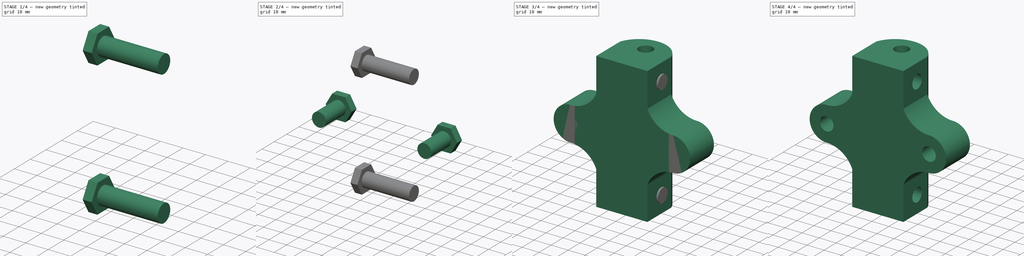
[diagram: build sequence overview — one tinted view per stage of 4, left to right]
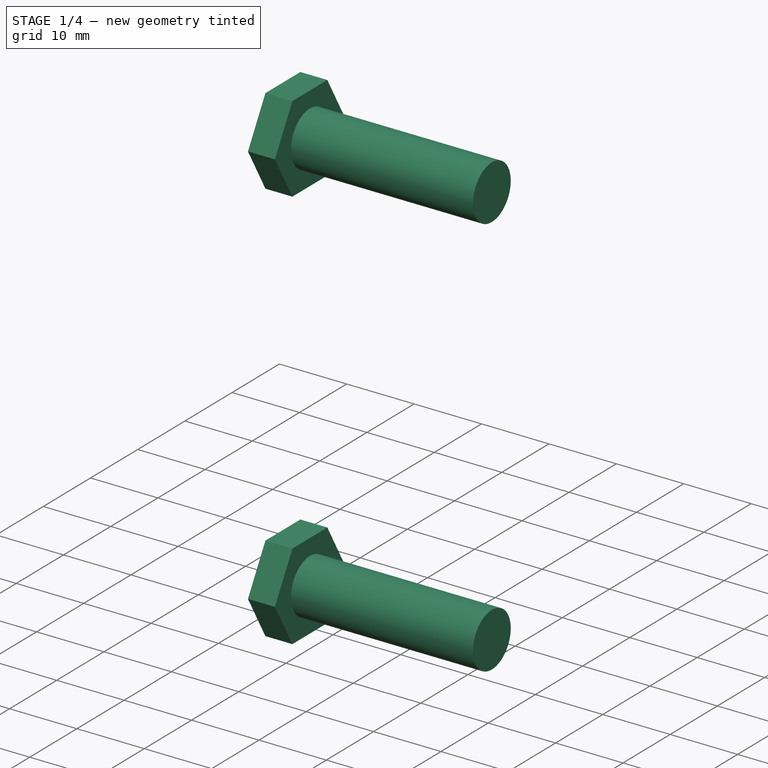
[diagram: stage 1 of 4 — iso view after this stage's code; geometry added in this stage tinted green]
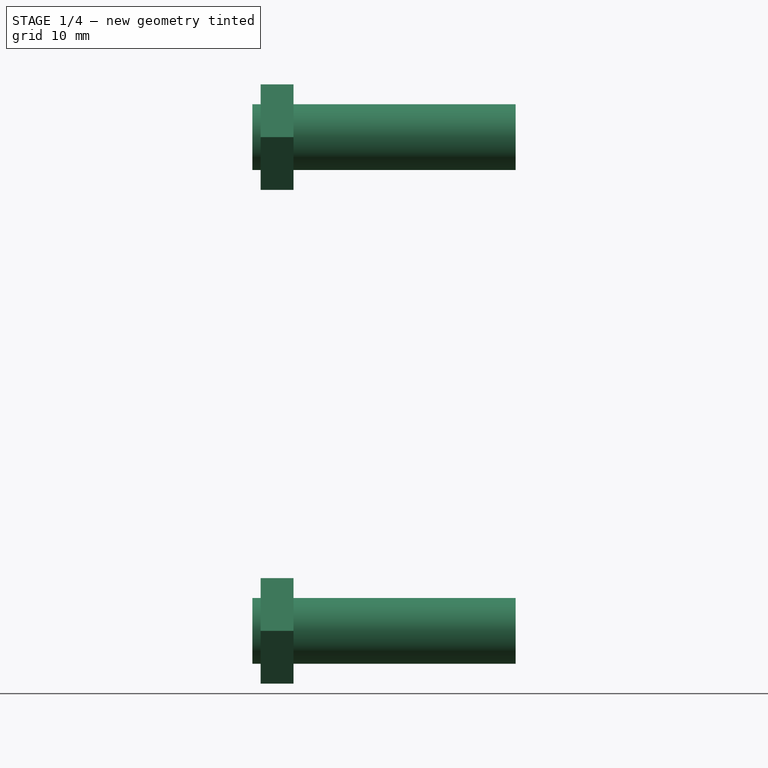
[diagram: stage 1 of 4 — front view after this stage's code; geometry added in this stage tinted green]
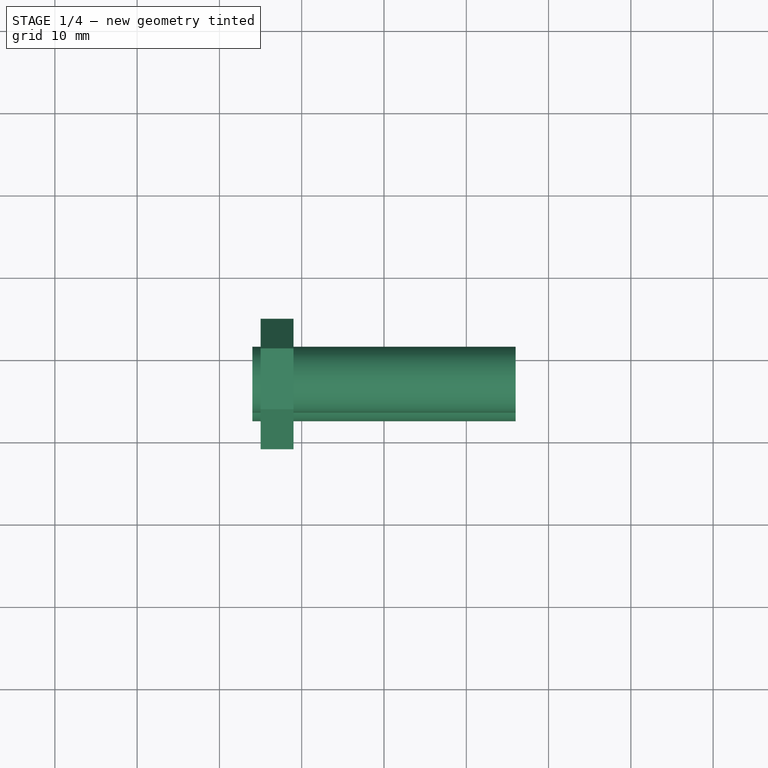
[diagram: stage 1 of 4 — top view after this stage's code; geometry added in this stage tinted green]
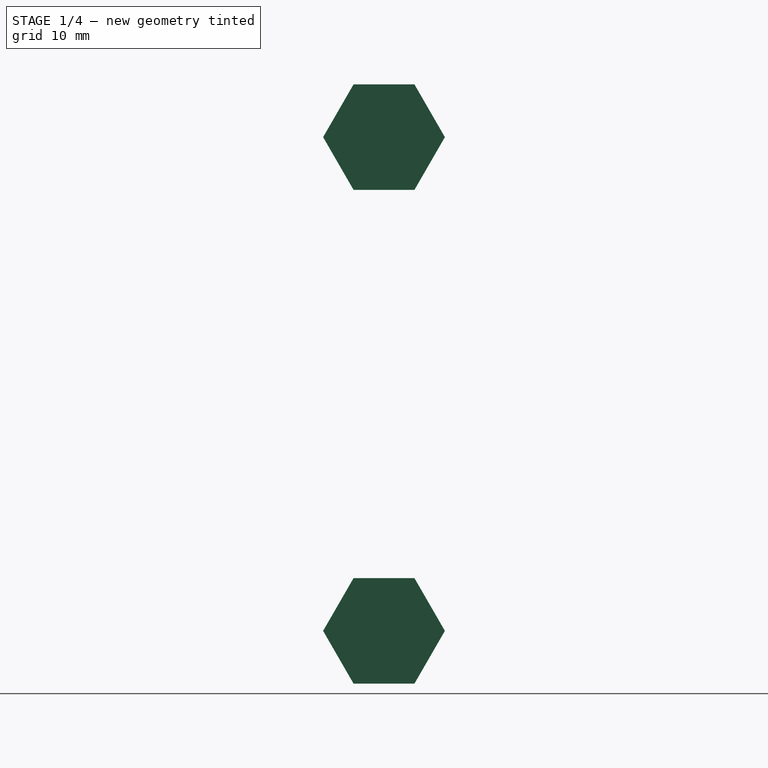
[diagram: stage 1 of 4 — right view after this stage's code; geometry added in this stage tinted green]
FCSTD DOCUMENT  (FreeCAD 0.16R6707 (Git))
Label: Corner_B
License: All rights reserved
LicenseURL: http://en.wikipedia.org/wiki/All_rights_reserved
objects: Sketcher::SketchObject×6, PartDesign::Pad×6, Part::MultiFuse×2, Part::Cut×1
note: 21 computed .brp shape members not serialized (recipe doc carries the construction recipe); baked Part::Feature solids carry a one-line shape summary decoded from their .brp

FEATURE [PartDesign::Pad] Pad004  label="RodHole02"
  Length = 32
  Length2 = 100
  Placement = pos=(16,0,0) rot=(0.57735,0.57735,0.57735;2.0944rad)
  Reversed = true
  Sketch = -> Sketch001
  Type = 0
FEATURE [PartDesign::Pad] Pad006  label="SideNutFlush02"
  Length = 4
  Length2 = 100
  Placement = pos=(-11,0,0) rot=(0.57735,0.57735,0.57735;2.0944rad)
  Reversed = true
  Sketch = -> Sketch002
  Type = 0
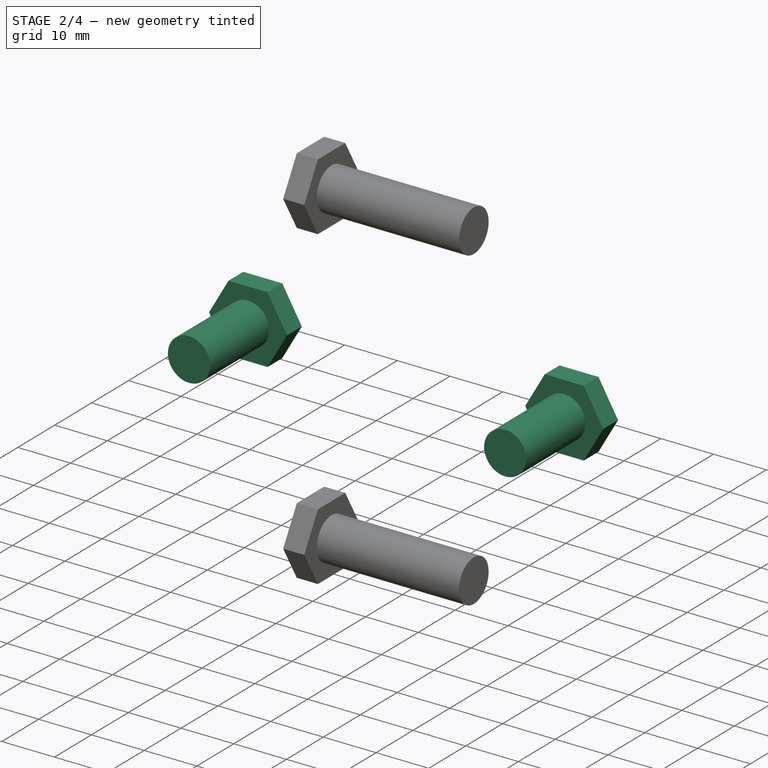
[diagram: stage 2 of 4 — iso view after this stage's code; geometry added in this stage tinted green]
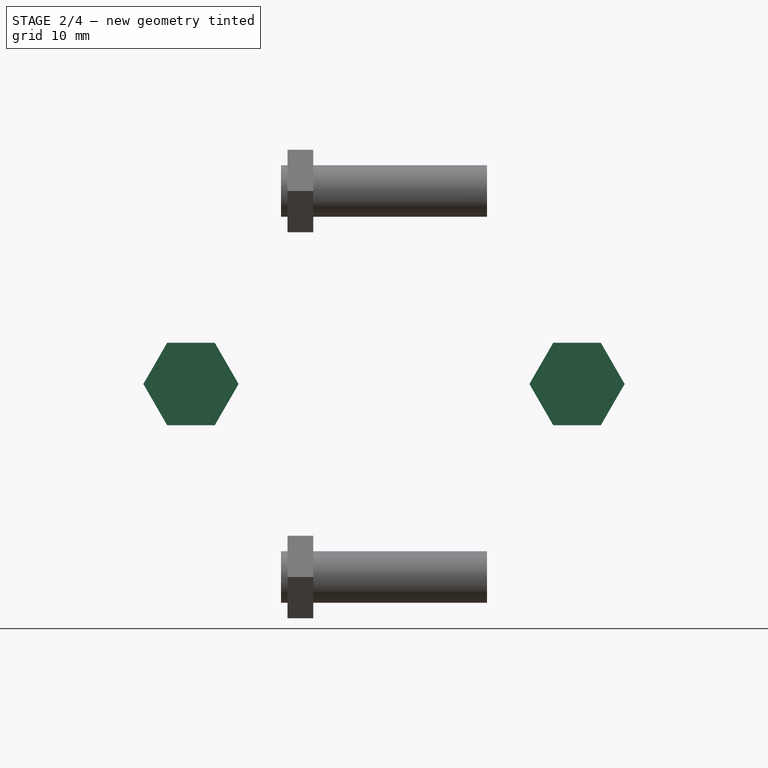
[diagram: stage 2 of 4 — front view after this stage's code; geometry added in this stage tinted green]
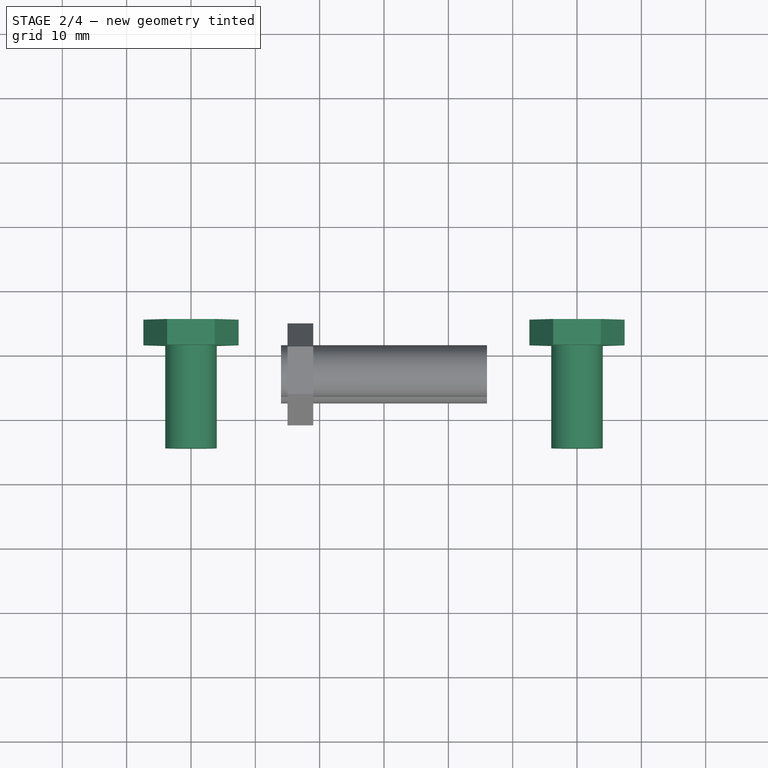
[diagram: stage 2 of 4 — top view after this stage's code; geometry added in this stage tinted green]
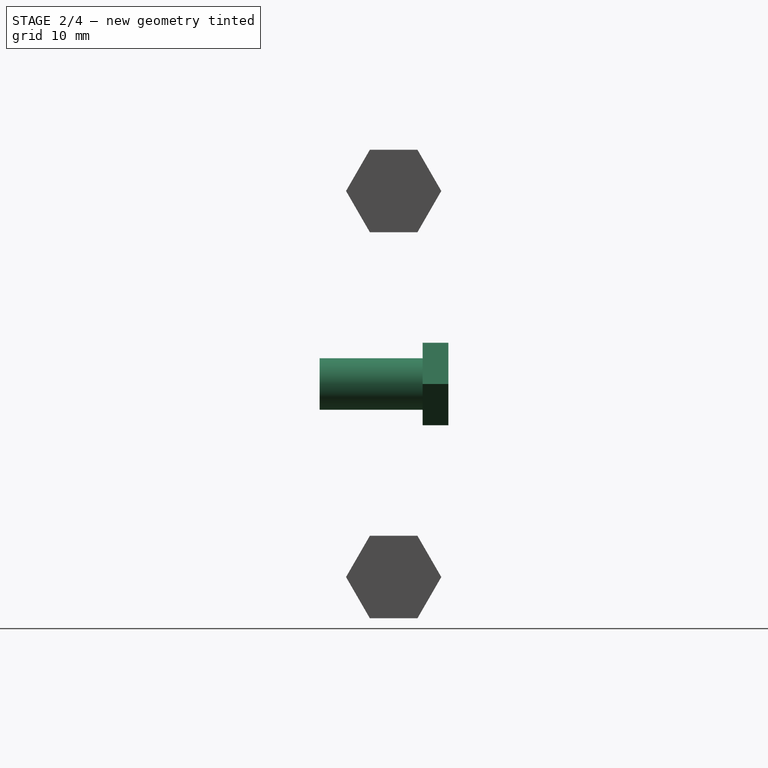
[diagram: stage 2 of 4 — right view after this stage's code; geometry added in this stage tinted green]
FEATURE [Sketcher::SketchObject] Sketch
  sketch-geometry (5):
    g0: LineSegment StartX=-15 StartY=5 StartZ=0 EndX=-15 EndY=-15 EndZ=0
    g1: LineSegment StartX=-15 StartY=-15 StartZ=0 EndX=15 EndY=-15 EndZ=0
    g2: LineSegment StartX=15 StartY=-15 StartZ=0 EndX=15 EndY=5 EndZ=0
    g3: Circle CenterX=0 CenterY=5 CenterZ=0 NormalX=0 NormalY=0 NormalZ=1 Radius=4.1
    g4: ArcOfCircle CenterX=0 CenterY=-0.567764 CenterZ=0 NormalX=0 NormalY=0 NormalZ=1 Radius=16 StartAngle=0.355421 EndAngle=2.78617
  constraints (17):
    c: Vertical(g0)
    c: Coincident(g0,g1)
    c: Horizontal(g1)
    c: Symmetric(g1,g0,g-2)
    c: DistanceX(g0,g1) = 30
    c: DistanceY(g1,g-1) = 15
    c: Vertical(g2)
    c: Coincident(g2,g1)
    c: Radius(g3) = 4.1
    c: PointOnObject(g3,g-2)
    c: DistanceY(g-1,g3) = 5
    c: PointOnObject(g4,g-2)
    c: Coincident(g4,g0)
    c: Coincident(g4,g2)
    c: Symmetric(g2,g0,g-2)
    c: DistanceY(g1,g2) = 20
    c: Radius(g4) = 16
FEATURE [Sketcher::SketchObject] Sketch001
  Placement = pos=(16,0,0) rot=(0.57735,0.57735,0.57735;2.0944rad)
  sketch-geometry (2):
    g0: Circle CenterX=-3.5 CenterY=70 CenterZ=0 NormalX=0 NormalY=0 NormalZ=1 Radius=4
    g1: Circle CenterX=-3.5 CenterY=10 CenterZ=0 NormalX=0 NormalY=0 NormalZ=1 Radius=4
  constraints (6):
    c: Radius(g1) = 4
    c: Equal(g1,g0)
    c: DistanceX(g0,g1) = 0
    c: DistanceY(g1,g0) = 60
    c: DistanceX(g1,g-1) = 3.5
    c: DistanceY(g-1,g1) = 10
FEATURE [Sketcher::SketchObject] Sketch002
  Placement = pos=(-11,0,0) rot=(0.57735,0.57735,0.57735;2.0944rad)
  sketch-geometry (14):
    g0: LineSegment StartX=3.9 StartY=70 StartZ=0 EndX=0.2 EndY=76.4086 EndZ=0
    g1: LineSegment StartX=0.2 StartY=76.4086 StartZ=0 EndX=-7.2 EndY=76.4086 EndZ=0
    g2: LineSegment StartX=-7.2 StartY=76.4086 StartZ=0 EndX=-10.9 EndY=70 EndZ=0
    g3: LineSegment StartX=-10.9 StartY=70 StartZ=0 EndX=-7.2 EndY=63.5914 EndZ=0
    g4: LineSegment StartX=-7.2 StartY=63.5914 StartZ=0 EndX=0.2 EndY=63.5914 EndZ=0
    g5: LineSegment StartX=0.2 StartY=63.5914 StartZ=0 EndX=3.9 EndY=70 EndZ=0
    g6: Circle [constr] CenterX=-3.5 CenterY=70 CenterZ=0 NormalX=0 NormalY=0 NormalZ=1 Radius=7.4
    g7: LineSegment StartX=0.2 StartY=3.59141 StartZ=0 EndX=3.9 EndY=10 EndZ=0
    g8: LineSegment StartX=3.9 StartY=10 StartZ=0 EndX=0.2 EndY=16.4086 EndZ=0
    g9: LineSegment StartX=0.2 StartY=16.4086 StartZ=0 EndX=-7.2 EndY=16.4086 EndZ=0
    g10: LineSegment StartX=-7.2 StartY=16.4086 StartZ=0 EndX=-10.9 EndY=10 EndZ=0
    g11: LineSegment StartX=-10.9 StartY=10 StartZ=0 EndX=-7.2 EndY=3.59141 EndZ=0
    g12: LineSegment StartX=-7.2 StartY=3.59141 StartZ=0 EndX=0.2 EndY=3.59141 EndZ=0
    g13: Circle [constr] CenterX=-3.5 CenterY=10 CenterZ=0 NormalX=0 NormalY=0 NormalZ=1 Radius=7.4
  constraints (34):
    c: Coincident(g0,g1)
    c: Coincident(g1,g2)
    c: Coincident(g2,g3)
    c: Coincident(g3,g4)
    c: Coincident(g4,g5)
    c: Coincident(g5,g0)
    c: Equal(g0, g1-g5) x5
    c: PointOnObject(g0,g6)
    c: PointOnObject(g1,g6)
    c: PointOnObject(g2,g6)
    c: PointOnObject(g3,g6)
    c: PointOnObject(g4,g6)
    c: PointOnObject(g5,g6)
    c: Coincident(g7,g8)
    c: Coincident(g8,g9)
    c: Coincident(g9,g10)
    c: Coincident(g10,g11)
    c: Coincident(g11,g12)
    c: Coincident(g12,g7)
    c: Equal(g7, g8-g12) x5
    c: PointOnObject(g7,g13)
    c: PointOnObject(g8,g13)
    c: PointOnObject(g9,g13)
    c: PointOnObject(g10,g13)
    c: PointOnObject(g11,g13)
    c: PointOnObject(g12,g13)
    c: Parallel(g9,g4)
    c: Radius(g6) = 7.4
    c: Equal(g6,g13)
    c: DistanceX(g13,g6) = 0
    c: DistanceY(g6,g13) = -60
    c: DistanceX(g13,g-1) = 3.5
    c: Perpendicular(g-2,g9)
    c: DistanceY(g-1,g13) = 10
FEATURE [Sketcher::SketchObject] Sketch007
  Placement = pos=(0,-15,0) rot=(1,0,0;1.5708rad)
  sketch-geometry (2):
    g0: Circle CenterX=30 CenterY=40 CenterZ=0 NormalX=0 NormalY=0 NormalZ=1 Radius=4
    g1: Circle CenterX=-30 CenterY=40 CenterZ=0 NormalX=0 NormalY=0 NormalZ=1 Radius=4
  constraints (6):
    c: Radius(g0) = 4
    c: DistanceY(g-1,g0) = 40
    c: Equal(g0,g1) = 4
    c: DistanceY(g1,g0) = 0
    c: DistanceX(g1,g0) = 60
    c: Symmetric(g0,g1,g-2)
FEATURE [Sketcher::SketchObject] Sketch008
  Placement = pos=(0,1,0) rot=(1,0,0;1.5708rad)
  sketch-geometry (14):
    g0: LineSegment StartX=33.7 StartY=33.5914 StartZ=0 EndX=37.4 EndY=40 EndZ=0
    g1: LineSegment StartX=37.4 StartY=40 StartZ=0 EndX=33.7 EndY=46.4086 EndZ=0
    g2: LineSegment StartX=33.7 StartY=46.4086 StartZ=0 EndX=26.3 EndY=46.4086 EndZ=0
    g3: LineSegment StartX=26.3 StartY=46.4086 StartZ=0 EndX=22.6 EndY=40 EndZ=0
    g4: LineSegment StartX=22.6 StartY=40 StartZ=0 EndX=26.3 EndY=33.5914 EndZ=0
    g5: LineSegment StartX=26.3 StartY=33.5914 StartZ=0 EndX=33.7 EndY=33.5914 EndZ=0
    g6: Circle [constr] CenterX=30 CenterY=40 CenterZ=0 NormalX=0 NormalY=0 NormalZ=1 Radius=7.4
    g7: LineSegment StartX=-26.3 StartY=33.5914 StartZ=0 EndX=-22.6 EndY=40 EndZ=0
    g8: LineSegment StartX=-22.6 StartY=40 StartZ=0 EndX=-26.3 EndY=46.4086 EndZ=0
    g9: LineSegment StartX=-26.3 StartY=46.4086 StartZ=0 EndX=-33.7 EndY=46.4086 EndZ=0
    g10: LineSegment StartX=-33.7 StartY=46.4086 StartZ=0 EndX=-37.4 EndY=40 EndZ=0
    g11: LineSegment StartX=-37.4 StartY=40 StartZ=0 EndX=-33.7 EndY=33.5914 EndZ=0
    g12: LineSegment StartX=-33.7 StartY=33.5914 StartZ=0 EndX=-26.3 EndY=33.5914 EndZ=0
    g13: Circle [constr] CenterX=-30 CenterY=40 CenterZ=0 NormalX=0 NormalY=0 NormalZ=1 Radius=7.4
  constraints (34):
    c: Coincident(g0,g1)
    c: Coincident(g1,g2)
    c: Coincident(g2,g3)
    c: Coincident(g3,g4)
    c: Coincident(g4,g5)
    c: Coincident(g5,g0)
    c: Equal(g0, g1-g5) x5
    c: PointOnObject(g0,g6)
    c: PointOnObject(g1,g6)
    c: PointOnObject(g2,g6)
    c: PointOnObject(g3,g6)
    c: PointOnObject(g4,g6)
    c: PointOnObject(g5,g6)
    c: Radius(g6) = 7.4
    c: Perpendicular(g-2,g2)
    c: DistanceY(g-1,g6) = 40
    c: Coincident(g7,g8)
    c: Coincident(g8,g9)
    c: Coincident(g9,g10)
    c: Coincident(g10,g11)
    c: Coincident(g11,g12)
    c: Coincident(g12,g7)
    c: Equal(g7, g8-g12) x5
    c: PointOnObject(g7,g13)
    c: PointOnObject(g8,g13)
    c: PointOnObject(g9,g13)
    c: PointOnObject(g10,g13)
    c: PointOnObject(g11,g13)
    c: PointOnObject(g12,g13)
    c: Equal(g6,g13) = 7.4
    c: DistanceY(g13,g6) = 0
    c: DistanceX(g13,g6) = 60
    c: Parallel(g2,g9)
    c: Symmetric(g13,g6,g-2)
FEATURE [PartDesign::Pad] Pad001  label="SideNutFlush01"
  Length = 4
  Length2 = 100
  Placement = pos=(0,1,0) rot=(1,0,0;1.5708rad)
  Reversed = true
  Sketch = -> Sketch008
  Type = 0
FEATURE [PartDesign::Pad] Pad003  label="RodHole01"
  Length = 20
  Length2 = 100
  Placement = pos=(0,-15,0) rot=(1,0,0;1.5708rad)
  Reversed = true
  Sketch = -> Sketch007
  Type = 0
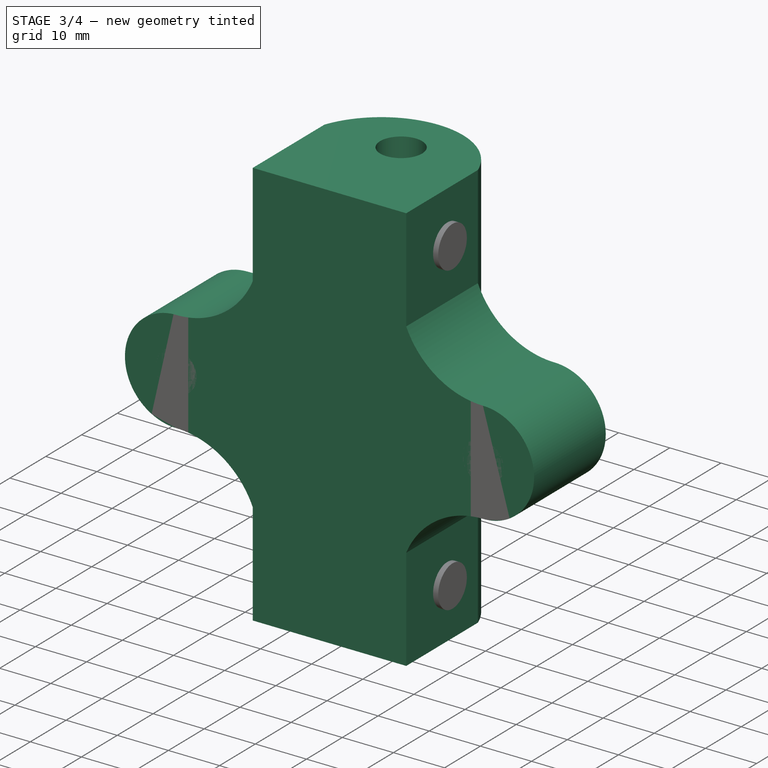
[diagram: stage 3 of 4 — iso view after this stage's code; geometry added in this stage tinted green]
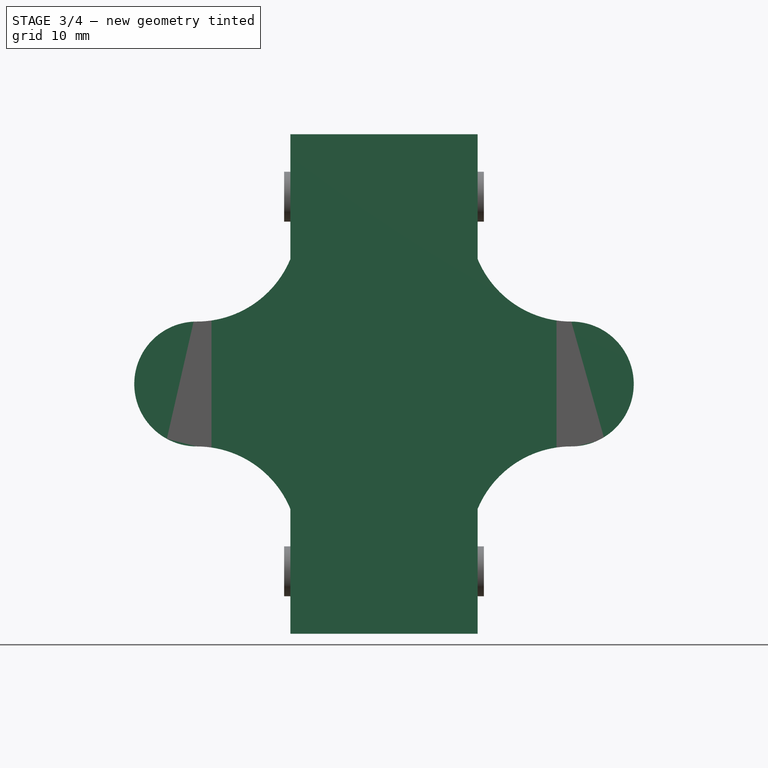
[diagram: stage 3 of 4 — front view after this stage's code; geometry added in this stage tinted green]
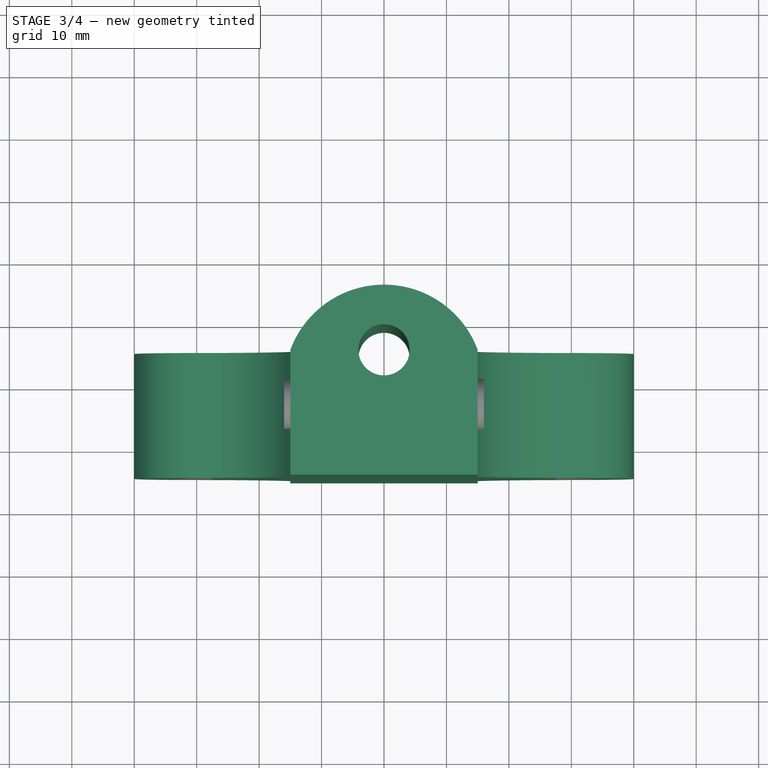
[diagram: stage 3 of 4 — top view after this stage's code; geometry added in this stage tinted green]
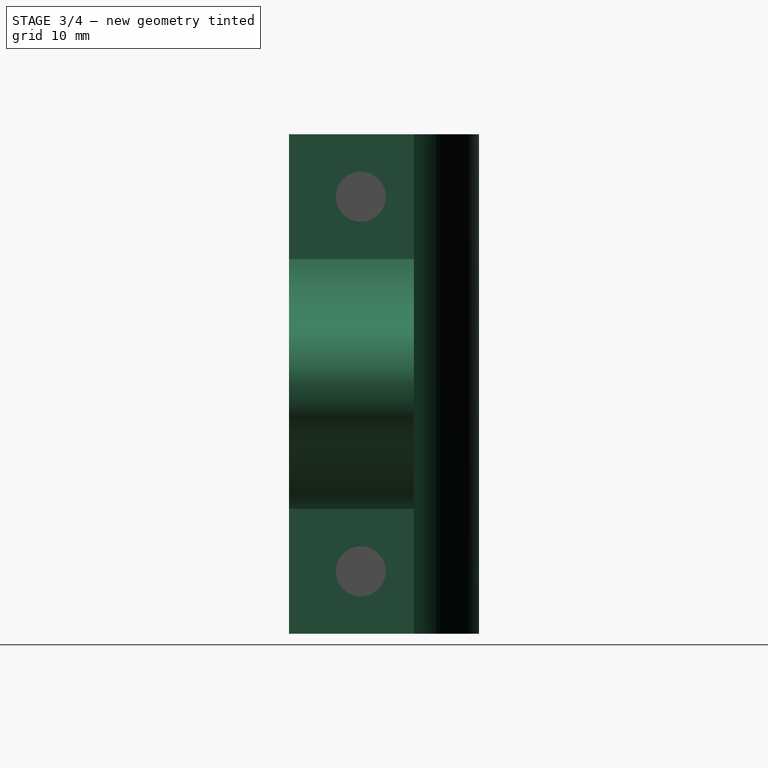
[diagram: stage 3 of 4 — right view after this stage's code; geometry added in this stage tinted green]
FEATURE [PartDesign::Pad] Pad  label="Base"
  Length = 80
  Length2 = 100
  Sketch = -> Sketch
  Type = 0
FEATURE [Sketcher::SketchObject] Sketch010
  Placement = pos=(0,-5,0) rot=(1,0,0;1.5708rad)
  sketch-geometry (8):
    g0: ArcOfCircle CenterX=-30 CenterY=13.75 CenterZ=0 NormalX=0 NormalY=0 NormalZ=1 Radius=16.25 StartAngle=0.394793 EndAngle=1.5708
    g1: ArcOfCircle CenterX=-30 CenterY=66.25 CenterZ=0 NormalX=0 NormalY=0 NormalZ=1 Radius=16.25 StartAngle=4.71239 EndAngle=5.88839
    g2: ArcOfCircle CenterX=-30 CenterY=40 CenterZ=0 NormalX=0 NormalY=0 NormalZ=1 Radius=10 StartAngle=1.5708 EndAngle=4.71239
    g3: ArcOfCircle CenterX=30 CenterY=66.25 CenterZ=0 NormalX=0 NormalY=0 NormalZ=1 Radius=16.25 StartAngle=3.53639 EndAngle=4.71239
    g4: ArcOfCircle CenterX=30 CenterY=13.75 CenterZ=0 NormalX=0 NormalY=0 NormalZ=1 Radius=16.25 StartAngle=1.5708 EndAngle=2.7468
    g5: ArcOfCircle CenterX=30 CenterY=40 CenterZ=0 NormalX=0 NormalY=0 NormalZ=1 Radius=10 StartAngle=4.71239 EndAngle=7.85398
    g6: LineSegment StartX=-15 StartY=60 StartZ=0 EndX=-15 EndY=20 EndZ=0
    g7: LineSegment StartX=15 StartY=60 StartZ=0 EndX=15 EndY=20 EndZ=0
  constraints (29):
    c: Vertical(g6)
    c: Vertical(g7)
    c: Coincident(g4,g7)
    c: Coincident(g7,g3)
    c: DistanceX(g4,g3) = 0
    c: Coincident(g5,g3)
    c: Coincident(g5,g4)
    c: Tangent(g4,g5)
    c: Tangent(g3,g5)
    c: Coincident(g6,g1)
    c: Coincident(g0,g6)
    c: Coincident(g2,g0)
    c: Tangent(g0,g2)
    c: Coincident(g2,g1)
    c: Tangent(g1,g2)
    c: DistanceX(g0,g1) = 0
    c: Equal(g6,g7)
    c: DistanceY(g5,g2) = 0
    c: Equal(g5,g2)
    c: Equal(g1,g0)
    c: Equal(g0,g3)
    c: DistanceX(g2,g-1) = 30
    c: DistanceY(g-1,g5) = 40
    c: Radius(g2) = 10
    c: Symmetric(g0,g4,g-2)
    c: DistanceX(g-1,g4) = 15
    c: DistanceY(g0,g1) = 40
    c: Symmetric(g5,g2,g-2)
    c: DistanceX(g0,g0) = 0
FEATURE [PartDesign::Pad] Pad008  label="Flairs"
  Length = 20
  Length2 = 100
  Midplane = true
  Placement = pos=(0,-5,0) rot=(1,0,0;1.5708rad)
  Sketch = -> Sketch010
  Type = 0
FEATURE [Part::MultiFuse] Fusion001  label="CutBlock"
  Shapes = -> [Pad001,Pad003,Pad004,Pad006]
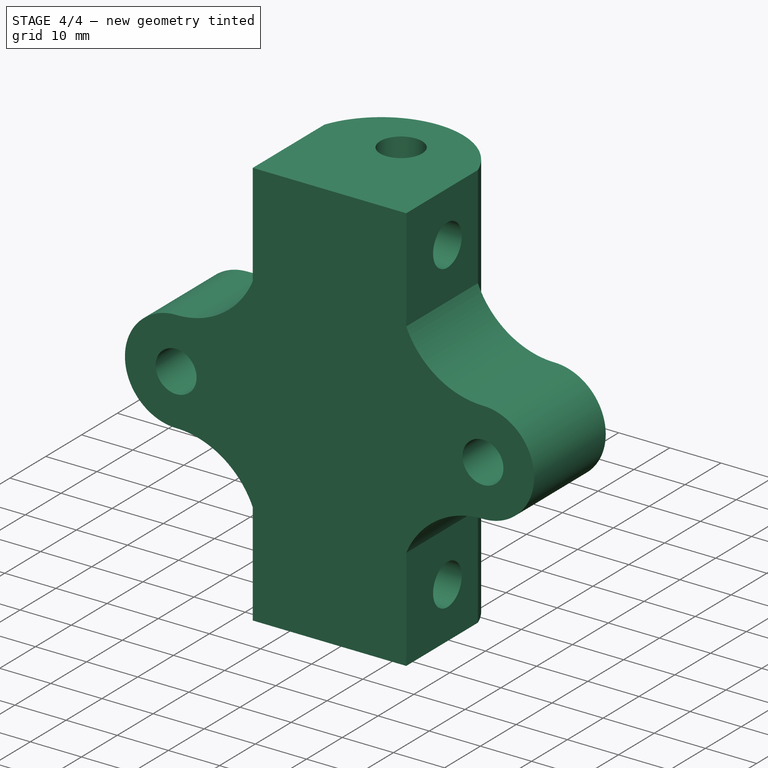
[diagram: stage 4 of 4 — iso view after this stage's code; geometry added in this stage tinted green]
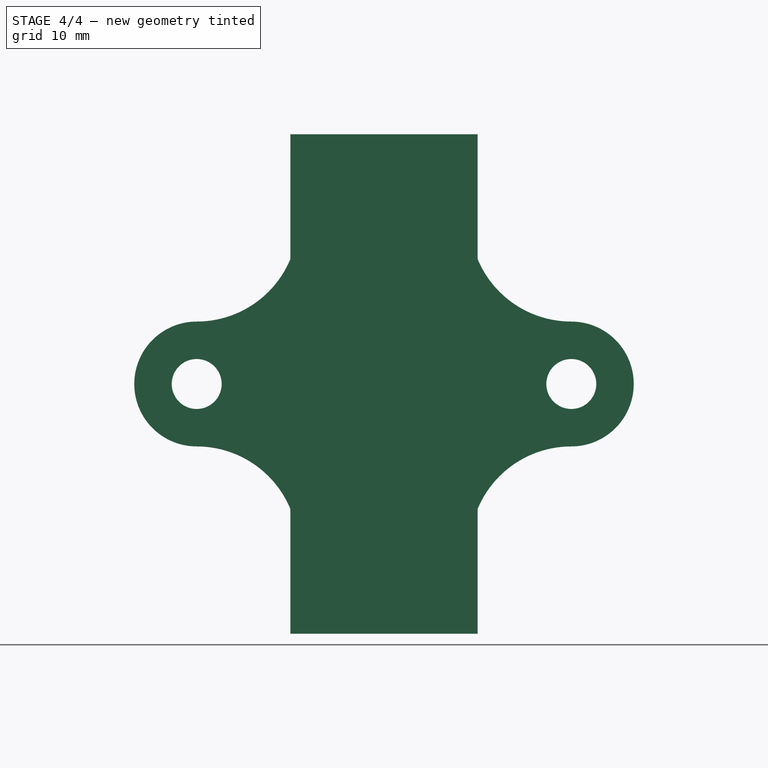
[diagram: stage 4 of 4 — front view after this stage's code; geometry added in this stage tinted green]
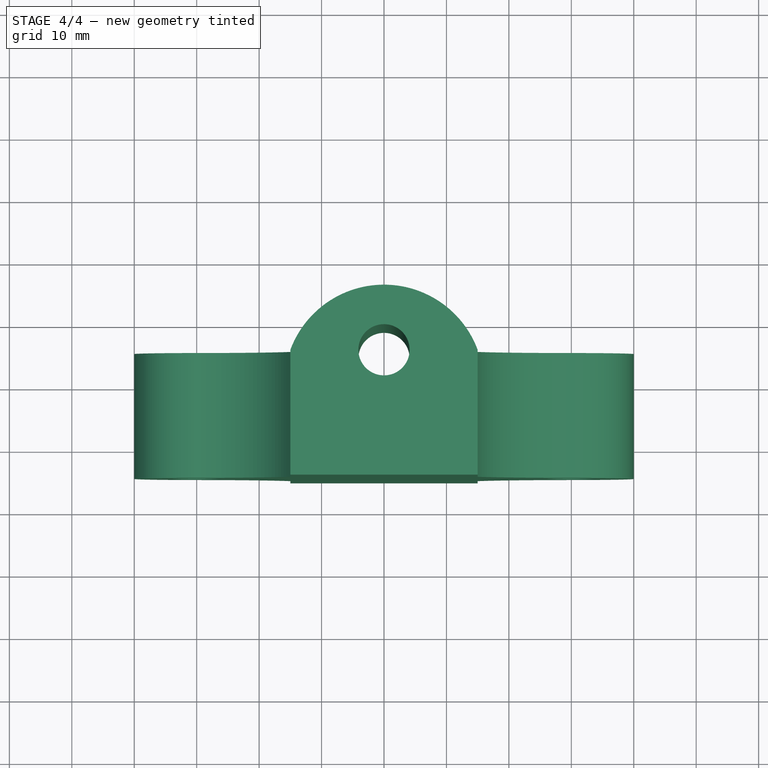
[diagram: stage 4 of 4 — top view after this stage's code; geometry added in this stage tinted green]
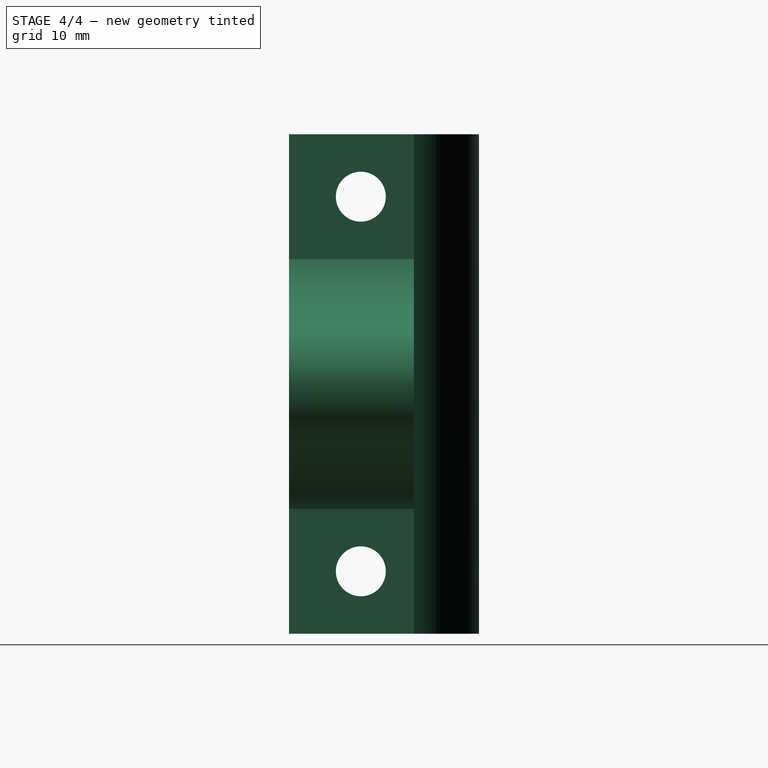
[diagram: stage 4 of 4 — right view after this stage's code; geometry added in this stage tinted green]
FEATURE [Part::MultiFuse] Fusion  label="BaseBlock"
  Shapes = -> [Pad008,Pad]
FEATURE [Part::Cut] Cut
  Base = -> Fusion
  Tool = -> Fusion001
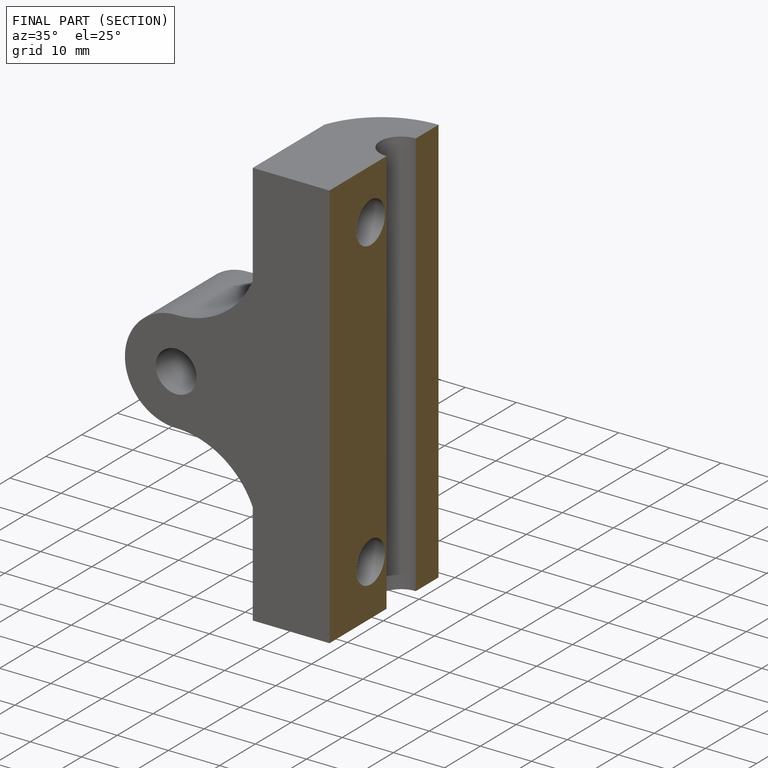
[diagram: finished part — half-section view (interior)]
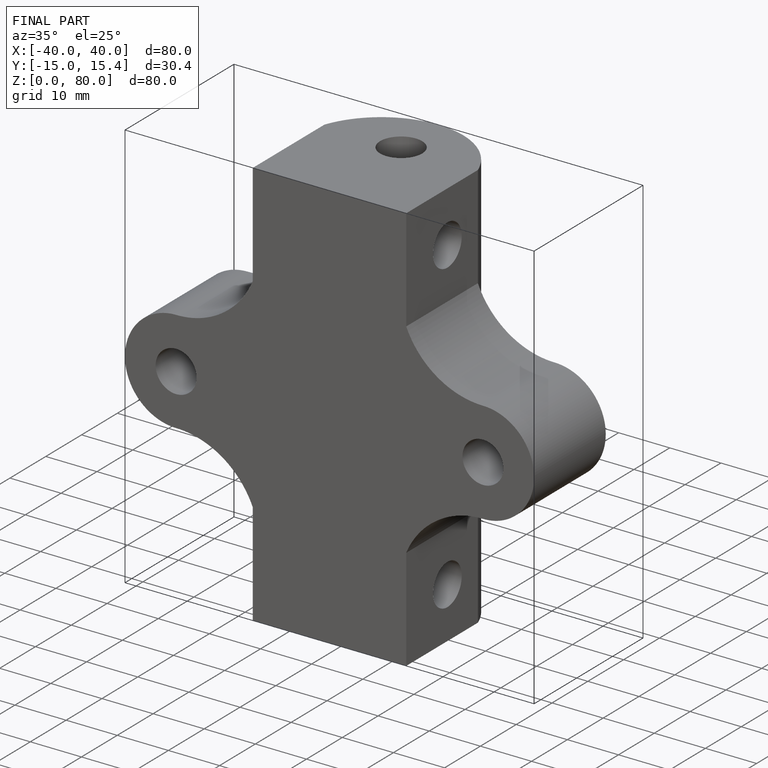
[diagram: finished part — iso view with bounding-box wireframe]
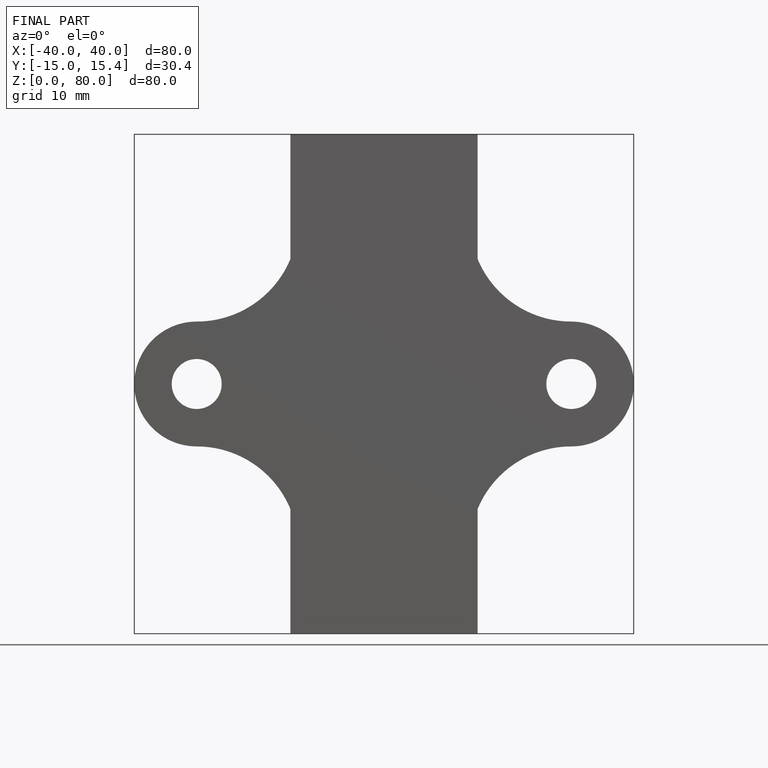
[diagram: finished part — front view with bounding-box wireframe]
